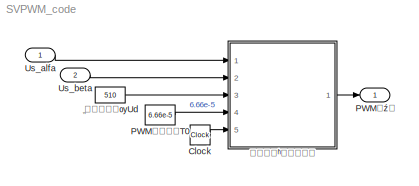
MODEL SVPWM_code
KIND model
BLOCK [Clock] Clock
  Decimation = 1
  SID = 3
BLOCK [Outport] PWM�ź�
  IconDisplay = Port number
  SID = 8
BLOCK [Constant] PWM����T0
  SID = 5
  Value = 6.66e-5
BLOCK [Inport] Us_alfa
  IconDisplay = Port number
  SID = 1
BLOCK [Inport] Us_beta
  IconDisplay = Port number
  Port = 2
  SID = 2
BLOCK [Constant] ֱ�����ѹUd
  SID = 7
  Value = 510
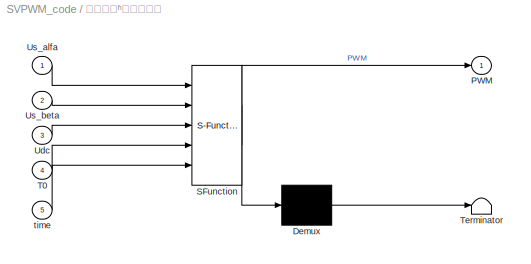
BLOCK [SubSystem] ����ʱ�����
  ErrorFcn = Stateflow.Translate.translate
  PermitHierarchicalResolution = ExplicitOnly
  Ports = [5, 1]
  RequestExecContextInheritance = off
  SFBlockType = MATLAB Function
  SID = 6
  TreatAsAtomicUnit = on
  Variant = off
BLOCK [Demux] ����ʱ�����/ Demux 
  Outputs = 1
  Ports = [1, 1]
  SID = 6::20
BLOCK [S-Function] ����ʱ�����/ SFunction 
  EnableBusSupport = on
  FunctionName = sf_sfun
  PortCounts = [5 2]
  Ports = [5, 2]
  SFcnIsStateOwnerBlock = off
  SFunctionDeploymentMode = off
  SID = 6::19
  Tag = Stateflow S-Function SVPWM_code 2
BLOCK [Terminator] ����ʱ�����/ Terminator 
  SID = 6::21
BLOCK [Outport] ����ʱ�����/PWM
  IconDisplay = Port number
  SID = 6::5
BLOCK [Inport] ����ʱ�����/T0
  IconDisplay = Port number
  Port = 4
  SID = 6::24
BLOCK [Inport] ����ʱ�����/Udc
  IconDisplay = Port number
  Port = 3
  SID = 6::23
BLOCK [Inport] ����ʱ�����/Us_alfa
  IconDisplay = Port number
  SID = 6::1
BLOCK [Inport] ����ʱ�����/Us_beta
  IconDisplay = Port number
  Port = 2
  SID = 6::22
BLOCK [Inport] ����ʱ�����/time
  IconDisplay = Port number
  Port = 5
  SID = 6::28
LINE Clock:1 -> ����ʱ�����:5
LINE PWM����T0:1 -> ����ʱ�����:4
LINE Us_alfa:1 -> ����ʱ�����:1
LINE Us_beta:1 -> ����ʱ�����:2
LINE ֱ�����ѹUd:1 -> ����ʱ�����:3
LINE ����ʱ�����/ Demux :1 -> ����ʱ�����/ Terminator :1
LINE ����ʱ�����/ SFunction :1 -> ����ʱ�����/ Demux :1
LINE ����ʱ�����/ SFunction :2 -> ����ʱ�����/PWM:1
LINE ����ʱ�����/T0:1 -> ����ʱ�����/ SFunction :4
LINE ����ʱ�����/Udc:1 -> ����ʱ�����/ SFunction :3
LINE ����ʱ�����/Us_alfa:1 -> ����ʱ�����/ SFunction :1
LINE ����ʱ�����/Us_beta:1 -> ����ʱ�����/ SFunction :2
LINE ����ʱ�����/time:1 -> ����ʱ�����/ SFunction :5
LINE ����ʱ�����:1 -> PWM�ź�:1
CHART ����ʱ����� states=1 transitions=1
  STATE_LABEL 'eML_blk_kernel()'
